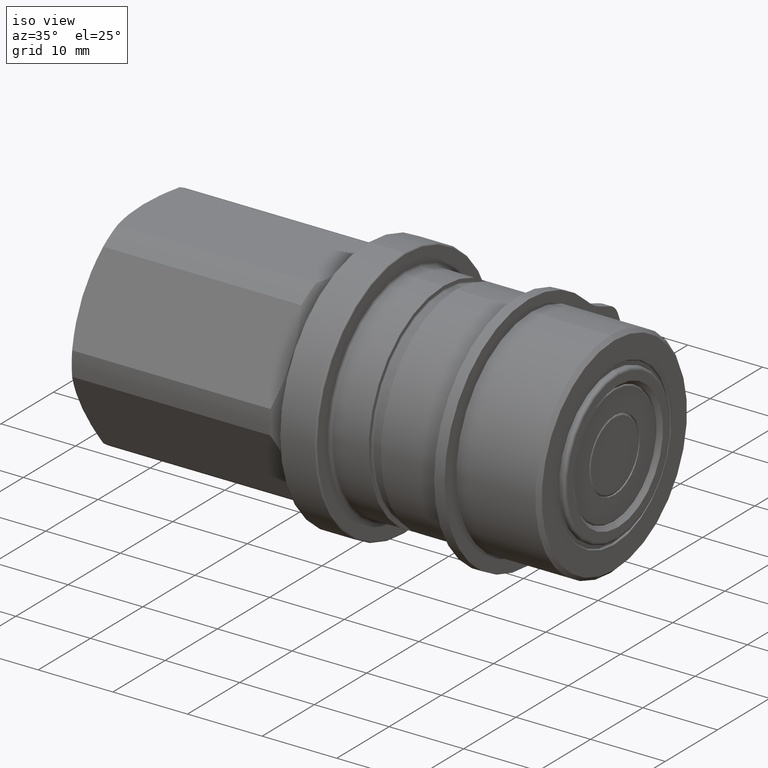
[diagram: clean part render]
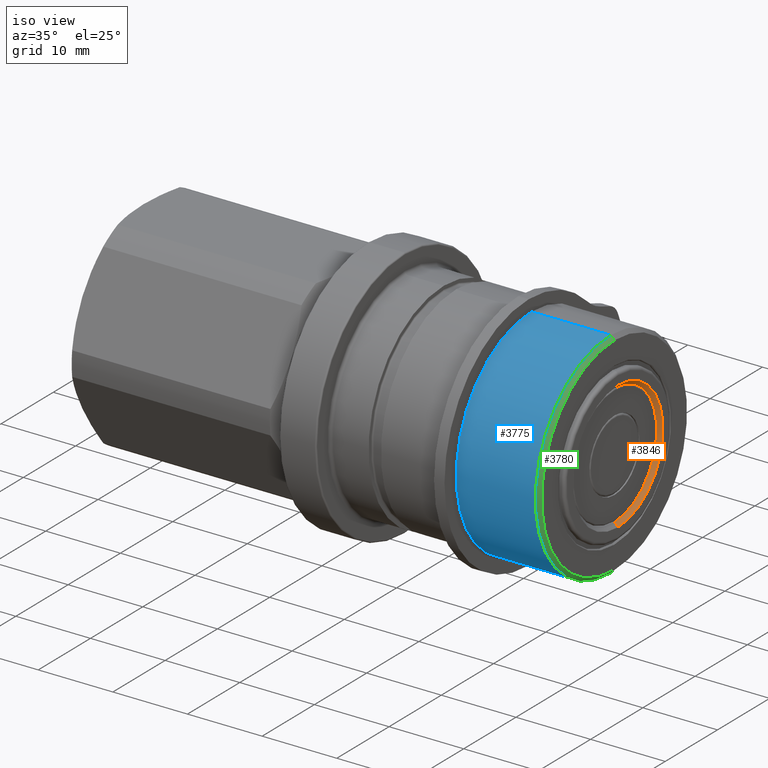
[diagram: same view with three faces highlighted in distinct colors, each labeled with its STEP entity id]
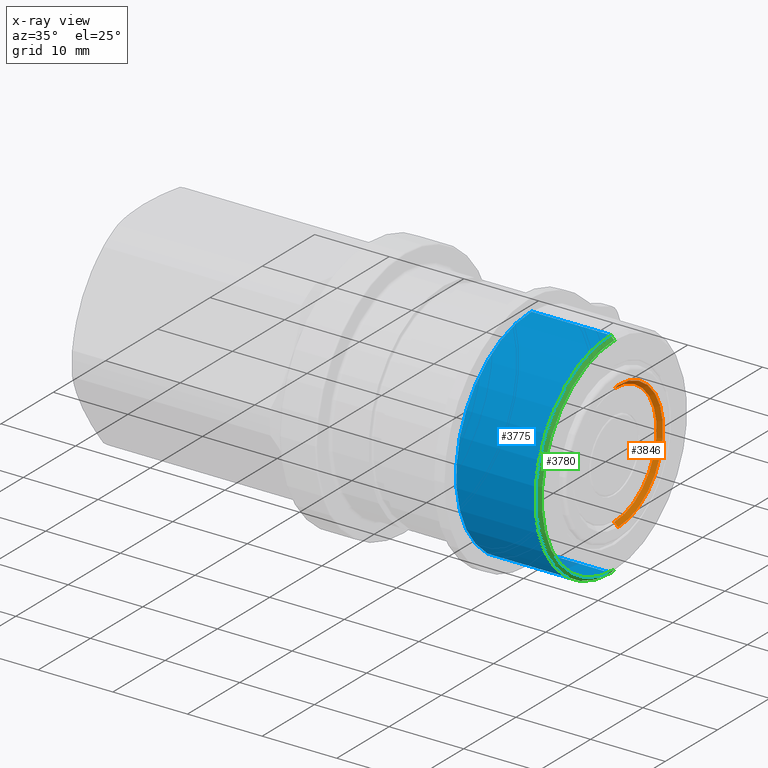
[diagram: x-ray of the same camera — body ghosted, the three highlighted faces saturated]
A machine part, iso view with three faces highlighted in distinct colors.
The next image is the same camera in x-ray (body ghosted, the three faces saturated) — at least one of them is partly hidden behind the body in this view.
Their STEP definitions:

[orange] entity #3846 — the highlighted conical surface has half-angle 45 deg.
#171 = EDGE_CURVE ( 'NONE', #4169, #4303, #1474, .T. ) ;
#190 = AXIS2_PLACEMENT_3D ( 'NONE', #4299, #4270, #4198 ) ;
#241 = AXIS2_PLACEMENT_3D ( 'NONE', #2221, #2115, #2146 ) ;
#319 = EDGE_CURVE ( 'NONE', #4320, #4136, #1057, .T. ) ;
#653 = FACE_OUTER_BOUND ( 'NONE', #1455, .T. ) ;
#654 = CONICAL_SURFACE ( 'NONE', #944, 8.100000000000005000, 0.7853981633974447300 ) ;
#944 = AXIS2_PLACEMENT_3D ( 'NONE', #2777, #2767, #2768 ) ;
#1057 = CIRCLE ( 'NONE', #241, 8.600000000000008500 ) ;
#1186 = LINE ( 'NONE', #2809, #1188 ) ;
#1188 = VECTOR ( 'NONE', #2801, 1000.000000000000100 ) ;
#1199 = LINE ( 'NONE', #4066, #1200 ) ;
#1200 = VECTOR ( 'NONE', #4060, 1000.000000000000100 ) ;
#1455 = EDGE_LOOP ( 'NONE', ( #1793, #1794, #1795, #1796 ) ) ;
#1474 = CIRCLE ( 'NONE', #190, 8.100000000000005000 ) ;
#1793 = ORIENTED_EDGE ( 'NONE', *, *, #3315, .F. ) ;
#1794 = ORIENTED_EDGE ( 'NONE', *, *, #171, .F. ) ;
#1795 = ORIENTED_EDGE ( 'NONE', *, *, #3325, .T. ) ;
#1796 = ORIENTED_EDGE ( 'NONE', *, *, #319, .F. ) ;
#2115 = DIRECTION ( 'NONE',  ( -1.000000000000000000, 0.0000000000000000000, 0.0000000000000000000 ) ) ;
#2146 = DIRECTION ( 'NONE',  ( 0.0000000000000000000, 0.0000000000000000000, 1.000000000000000000 ) ) ;
#2221 = CARTESIAN_POINT ( 'NONE',  ( 62.70000000000000300, -0.02927498360197964400, 0.0000000000000000000 ) ) ;
#2767 = DIRECTION ( 'NONE',  ( 1.000000000000000000, 0.0000000000000000000, 0.0000000000000000000 ) ) ;
#2768 = DIRECTION ( 'NONE',  ( 0.0000000000000000000, 0.0000000000000000000, -1.000000000000000000 ) ) ;
#2774 = CARTESIAN_POINT ( 'NONE',  ( 62.70000000000000300, -0.02927498360197964400, -8.600000000000015600 ) ) ;
#2777 = CARTESIAN_POINT ( 'NONE',  ( 62.19999999999998900, -0.02927498360197964400, 0.0000000000000000000 ) ) ;
#2801 = DIRECTION ( 'NONE',  ( 0.7071067811865500200, 8.659560562354904500E-017, 0.7071067811865451300 ) ) ;
#2809 = CARTESIAN_POINT ( 'NONE',  ( 62.19999999999998900, -0.02927498360197865200, 8.100000000000005000 ) ) ;
#3315 = EDGE_CURVE ( 'NONE', #4303, #4320, #1186, .T. ) ;
#3325 = EDGE_CURVE ( 'NONE', #4169, #4136, #1199, .T. ) ;
#3632 = CARTESIAN_POINT ( 'NONE',  ( 62.70000000000000300, -0.02927498360197858900, 8.600000000000015600 ) ) ;
#3647 = CARTESIAN_POINT ( 'NONE',  ( 62.19999999999998900, -0.02927498360197865200, 8.100000000000005000 ) ) ;
#3846 = ADVANCED_FACE ( 'NONE', ( #653 ), #654, .F. ) ;
#3965 = CARTESIAN_POINT ( 'NONE',  ( 62.19999999999998900, -0.02927498360197964400, -8.100000000000005000 ) ) ;
#4060 = DIRECTION ( 'NONE',  ( 0.7071067811865500200, 0.0000000000000000000, -0.7071067811865451300 ) ) ;
#4066 = CARTESIAN_POINT ( 'NONE',  ( 62.19999999999998900, -0.02927498360197964400, -8.100000000000005000 ) ) ;
#4136 = VERTEX_POINT ( 'NONE', #2774 ) ;
#4169 = VERTEX_POINT ( 'NONE', #3965 ) ;
#4198 = DIRECTION ( 'NONE',  ( 0.0000000000000000000, 0.0000000000000000000, 1.000000000000000000 ) ) ;
#4270 = DIRECTION ( 'NONE',  ( 1.000000000000000000, 0.0000000000000000000, 0.0000000000000000000 ) ) ;
#4299 = CARTESIAN_POINT ( 'NONE',  ( 62.19999999999998900, -0.02927498360197964400, 0.0000000000000000000 ) ) ;
#4303 = VERTEX_POINT ( 'NONE', #3647 ) ;
#4320 = VERTEX_POINT ( 'NONE', #3632 ) ;

[blue] entity #3775 — the highlighted cylindrical surface (partial cylindrical patch) has radius 14.4 mm, axis along (-1, -0, -0).
#119 = CARTESIAN_POINT ( 'NONE',  ( 29.20000000000000300, -0.02927498360198051200, 4.102387834613020600E-016 ) ) ;
#137 = DIRECTION ( 'NONE',  ( 0.0000000000000000000, 0.0000000000000000000, 1.000000000000000000 ) ) ;
#154 = DIRECTION ( 'NONE',  ( -1.000000000000000000, -0.0000000000000000000, -0.0000000000000000000 ) ) ;
#518 = FACE_OUTER_BOUND ( 'NONE', #1316, .T. ) ;
#519 = CYLINDRICAL_SURFACE ( 'NONE', #873, 14.40000000000000000 ) ;
#710 = LINE ( 'NONE', #2611, #712 ) ;
#712 = VECTOR ( 'NONE', #2528, 1000.000000000000000 ) ;
#809 = AXIS2_PLACEMENT_3D ( 'NONE', #3158, #3159, #3155 ) ;
#873 = AXIS2_PLACEMENT_3D ( 'NONE', #119, #154, #137 ) ;
#991 = AXIS2_PLACEMENT_3D ( 'NONE', #2526, #2711, #2579 ) ;
#1235 = CIRCLE ( 'NONE', #809, 14.40000000000000000 ) ;
#1316 = EDGE_LOOP ( 'NONE', ( #1620, #1662, #1671, #1673 ) ) ;
#1620 = ORIENTED_EDGE ( 'NONE', *, *, #4000, .F. ) ;
#1662 = ORIENTED_EDGE ( 'NONE', *, *, #4007, .T. ) ;
#1671 = ORIENTED_EDGE ( 'NONE', *, *, #3982, .T. ) ;
#1673 = ORIENTED_EDGE ( 'NONE', *, *, #3352, .F. ) ;
#2526 = CARTESIAN_POINT ( 'NONE',  ( 61.69999999999999600, -0.02927498360198051200, 4.102387834613020600E-016 ) ) ;
#2528 = DIRECTION ( 'NONE',  ( -1.000000000000000000, -0.0000000000000000000, -0.0000000000000000000 ) ) ;
#2579 = DIRECTION ( 'NONE',  ( 0.0000000000000000000, 0.0000000000000000000, -1.000000000000000000 ) ) ;
#2611 = CARTESIAN_POINT ( 'NONE',  ( 29.20000000000000300, -0.02927498360198051200, 14.40000000000000000 ) ) ;
#2638 = DIRECTION ( 'NONE',  ( -1.000000000000000000, -0.0000000000000000000, -0.0000000000000000000 ) ) ;
#2711 = DIRECTION ( 'NONE',  ( -1.000000000000000000, -0.0000000000000000000, -0.0000000000000000000 ) ) ;
#2742 = CARTESIAN_POINT ( 'NONE',  ( 29.20000000000000300, -0.02927498360197874900, -14.40000000000000000 ) ) ;
#2780 = CARTESIAN_POINT ( 'NONE',  ( 51.10000000000000900, -0.02927498360197874900, -14.40000000000000000 ) ) ;
#3155 = DIRECTION ( 'NONE',  ( 0.0000000000000000000, 0.0000000000000000000, 1.000000000000000000 ) ) ;
#3158 = CARTESIAN_POINT ( 'NONE',  ( 51.10000000000000900, -0.02927498360198051200, 4.102387834613020600E-016 ) ) ;
#3159 = DIRECTION ( 'NONE',  ( -1.000000000000000000, -0.0000000000000000000, -0.0000000000000000000 ) ) ;
#3352 = EDGE_CURVE ( 'NONE', #4132, #4173, #1235, .T. ) ;
#3546 = LINE ( 'NONE', #2742, #3548 ) ;
#3548 = VECTOR ( 'NONE', #2638, 1000.000000000000000 ) ;
#3557 = CIRCLE ( 'NONE', #991, 14.40000000000000000 ) ;
#3692 = CARTESIAN_POINT ( 'NONE',  ( 61.69999999999999600, -0.02927498360198051200, 14.40000000000000000 ) ) ;
#3775 = ADVANCED_FACE ( 'NONE', ( #518 ), #519, .T. ) ;
#3917 = CARTESIAN_POINT ( 'NONE',  ( 61.69999999999999600, -0.02927498360197874900, -14.40000000000000000 ) ) ;
#3961 = CARTESIAN_POINT ( 'NONE',  ( 51.10000000000000900, -0.02927498360198051200, 14.40000000000000000 ) ) ;
#3982 = EDGE_CURVE ( 'NONE', #4251, #4173, #710, .T. ) ;
#4000 = EDGE_CURVE ( 'NONE', #4156, #4132, #3546, .T. ) ;
#4007 = EDGE_CURVE ( 'NONE', #4156, #4251, #3557, .T. ) ;
#4132 = VERTEX_POINT ( 'NONE', #2780 ) ;
#4156 = VERTEX_POINT ( 'NONE', #3917 ) ;
#4173 = VERTEX_POINT ( 'NONE', #3961 ) ;
#4251 = VERTEX_POINT ( 'NONE', #3692 ) ;

[green] entity #3780 — the highlighted conical surface has half-angle 45 deg.
#385 = EDGE_CURVE ( 'NONE', #4157, #4156, #1124, .T. ) ;
#528 = FACE_OUTER_BOUND ( 'NONE', #1451, .T. ) ;
#529 = CONICAL_SURFACE ( 'NONE', #878, 14.40000000000000000, 0.7853981633974447300 ) ;
#717 = CIRCLE ( 'NONE', #977, 13.89999999999999500 ) ;
#878 = AXIS2_PLACEMENT_3D ( 'NONE', #2459, #2678, #2756 ) ;
#977 = AXIS2_PLACEMENT_3D ( 'NONE', #2525, #2592, #2527 ) ;
#991 = AXIS2_PLACEMENT_3D ( 'NONE', #2526, #2711, #2579 ) ;
#1124 = LINE ( 'NONE', #2018, #1126 ) ;
#1126 = VECTOR ( 'NONE', #2101, 1000.000000000000100 ) ;
#1451 = EDGE_LOOP ( 'NONE', ( #1603, #1602, #1601, #1600 ) ) ;
#1600 = ORIENTED_EDGE ( 'NONE', *, *, #4007, .F. ) ;
#1601 = ORIENTED_EDGE ( 'NONE', *, *, #4021, .T. ) ;
#1602 = ORIENTED_EDGE ( 'NONE', *, *, #3987, .F. ) ;
#1603 = ORIENTED_EDGE ( 'NONE', *, *, #385, .F. ) ;
#2018 = CARTESIAN_POINT ( 'NONE',  ( 61.69999999999999600, -0.02927498360197874900, -14.40000000000000000 ) ) ;
#2101 = DIRECTION ( 'NONE',  ( -0.7071067811865500200, 8.659560562354904500E-017, -0.7071067811865451300 ) ) ;
#2459 = CARTESIAN_POINT ( 'NONE',  ( 61.69999999999999600, -0.02927498360198051200, 4.102387834613020600E-016 ) ) ;
#2525 = CARTESIAN_POINT ( 'NONE',  ( 62.20000000000000300, -0.02927498360198051200, 4.102387834613020600E-016 ) ) ;
#2526 = CARTESIAN_POINT ( 'NONE',  ( 61.69999999999999600, -0.02927498360198051200, 4.102387834613020600E-016 ) ) ;
#2527 = DIRECTION ( 'NONE',  ( 0.0000000000000000000, 0.0000000000000000000, -1.000000000000000000 ) ) ;
#2553 = DIRECTION ( 'NONE',  ( -0.7071067811865500200, 0.0000000000000000000, 0.7071067811865451300 ) ) ;
#2575 = CARTESIAN_POINT ( 'NONE',  ( 61.69999999999999600, -0.02927498360198051200, 14.40000000000000000 ) ) ;
#2579 = DIRECTION ( 'NONE',  ( 0.0000000000000000000, 0.0000000000000000000, -1.000000000000000000 ) ) ;
#2592 = DIRECTION ( 'NONE',  ( 1.000000000000000000, 0.0000000000000000000, 0.0000000000000000000 ) ) ;
#2678 = DIRECTION ( 'NONE',  ( -1.000000000000000000, -0.0000000000000000000, -0.0000000000000000000 ) ) ;
#2711 = DIRECTION ( 'NONE',  ( -1.000000000000000000, -0.0000000000000000000, -0.0000000000000000000 ) ) ;
#2756 = DIRECTION ( 'NONE',  ( 0.0000000000000000000, 0.0000000000000000000, 1.000000000000000000 ) ) ;
#3557 = CIRCLE ( 'NONE', #991, 14.40000000000000000 ) ;
#3571 = LINE ( 'NONE', #2575, #3573 ) ;
#3573 = VECTOR ( 'NONE', #2553, 1000.000000000000100 ) ;
#3692 = CARTESIAN_POINT ( 'NONE',  ( 61.69999999999999600, -0.02927498360198051200, 14.40000000000000000 ) ) ;
#3780 = ADVANCED_FACE ( 'NONE', ( #528 ), #529, .T. ) ;
#3879 = CARTESIAN_POINT ( 'NONE',  ( 62.20000000000000300, -0.02927498360198051200, 13.89999999999999500 ) ) ;
#3916 = CARTESIAN_POINT ( 'NONE',  ( 62.20000000000000300, -0.02927498360197878000, -13.89999999999999500 ) ) ;
#3917 = CARTESIAN_POINT ( 'NONE',  ( 61.69999999999999600, -0.02927498360197874900, -14.40000000000000000 ) ) ;
#3987 = EDGE_CURVE ( 'NONE', #4240, #4157, #717, .T. ) ;
#4007 = EDGE_CURVE ( 'NONE', #4156, #4251, #3557, .T. ) ;
#4021 = EDGE_CURVE ( 'NONE', #4240, #4251, #3571, .T. ) ;
#4156 = VERTEX_POINT ( 'NONE', #3917 ) ;
#4157 = VERTEX_POINT ( 'NONE', #3916 ) ;
#4240 = VERTEX_POINT ( 'NONE', #3879 ) ;
#4251 = VERTEX_POINT ( 'NONE', #3692 ) ;